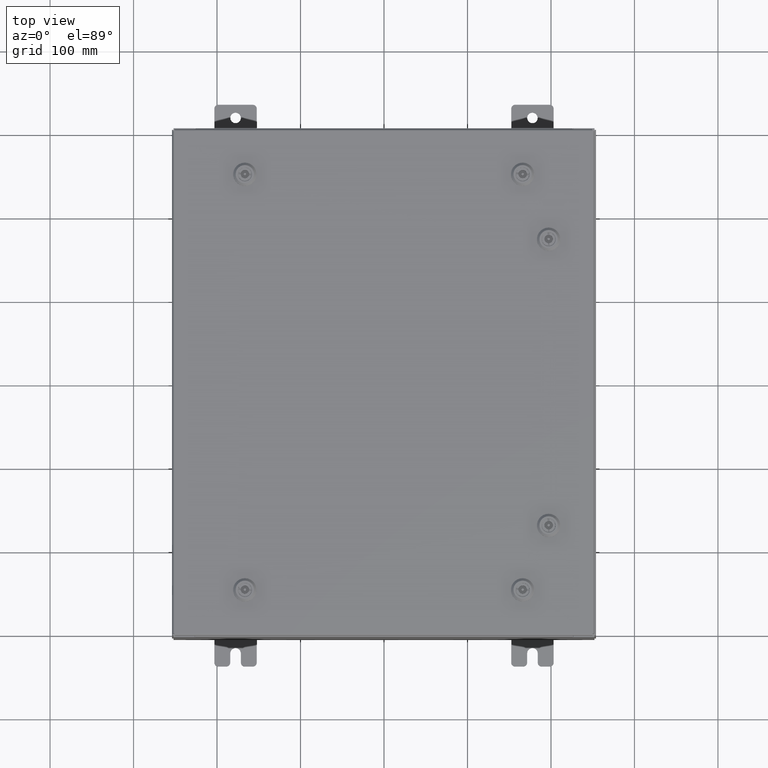
[diagram: clean part render]
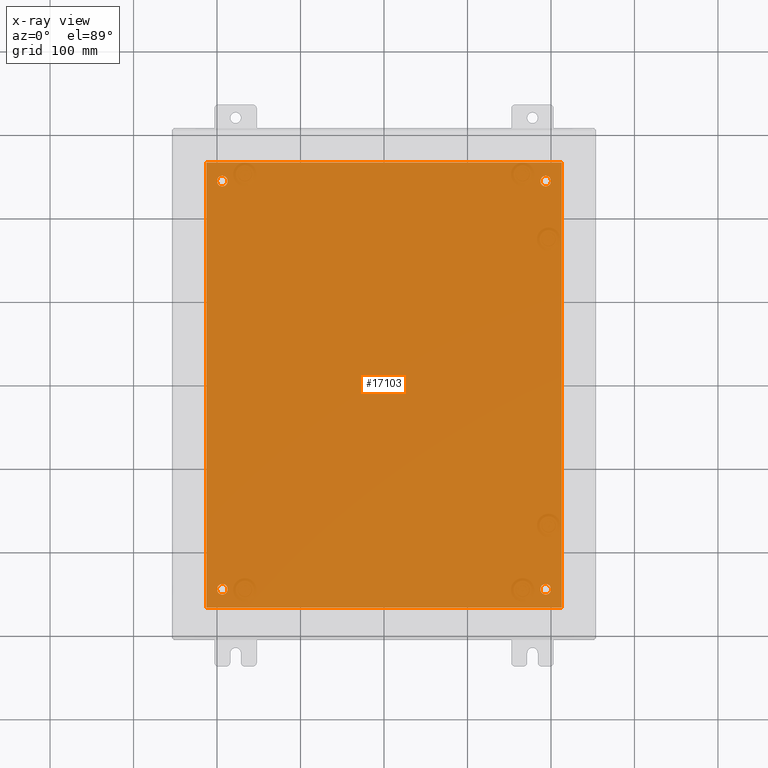
[diagram: x-ray — body ghosted, one internal face saturated and labeled with its STEP entity id]
A machine part, top view, then the same camera in x-ray: the body is ghosted and one INTERNAL B-rep face — a face not visible from any outside direction — is saturated and labeled: STEP entity #17103.
In plain terms, the highlighted planar face has unit normal (0, 0, -1).
Its self-contained STEP definition (entity closure, byte-faithful):
#74 = ORIENTED_EDGE ( 'NONE', *, *, #5745, .T. ) ;
#174 = CARTESIAN_POINT ( 'NONE',  ( 8.382999999999999100, -10.50000000000000200, -0.1039999999999998100 ) ) ;
#1517 = CARTESIAN_POINT ( 'NONE',  ( -8.500000000000001800, 10.50000000000000200, -0.1039999999999999800 ) ) ;
#1694 = EDGE_CURVE ( 'NONE', #27421, #2485, #14214, .T. ) ;
#2332 = EDGE_CURVE ( 'NONE', #38944, #36705, #59443, .T. ) ;
#2485 = VERTEX_POINT ( 'NONE', #46382 ) ;
#3103 = CIRCLE ( 'NONE', #4599, 0.2499999999999987000 ) ;
#4325 = VECTOR ( 'NONE', #23172, 39.37007874015748100 ) ;
#4449 = CARTESIAN_POINT ( 'NONE',  ( -7.625000000000004400, -9.625000000000001800, -0.1039999999999999800 ) ) ;
#4599 = AXIS2_PLACEMENT_3D ( 'NONE', #47724, #18327, #52656 ) ;
#5409 = EDGE_LOOP ( 'NONE', ( #44856, #25897 ) ) ;
#5745 = EDGE_CURVE ( 'NONE', #56932, #62209, #40051, .T. ) ;
#6470 = CARTESIAN_POINT ( 'NONE',  ( -7.875000000000003600, -9.625000000000001800, -0.1039999999999999800 ) ) ;
#7677 = DIRECTION ( 'NONE',  ( 0.0000000000000000000, 0.0000000000000000000, -1.000000000000000000 ) ) ;
#7693 = VERTEX_POINT ( 'NONE', #12562 ) ;
#8388 = EDGE_CURVE ( 'NONE', #2485, #38944, #52908, .T. ) ;
#8423 = ORIENTED_EDGE ( 'NONE', *, *, #2332, .F. ) ;
#8473 = CARTESIAN_POINT ( 'NONE',  ( -8.500000000000001800, -10.50000000000000000, -0.1039999999999999800 ) ) ;
#8996 = AXIS2_PLACEMENT_3D ( 'NONE', #4449, #38738, #9379 ) ;
#9379 = DIRECTION ( 'NONE',  ( -1.000000000000000000, 0.0000000000000000000, 0.0000000000000000000 ) ) ;
#9453 = AXIS2_PLACEMENT_3D ( 'NONE', #17543, #51853, #22429 ) ;
#9767 = CARTESIAN_POINT ( 'NONE',  ( -7.875000000000003600, 9.625000000000001800, -0.1039999999999999800 ) ) ;
#12424 = DIRECTION ( 'NONE',  ( -0.0000000000000000000, -0.0000000000000000000, 1.000000000000000000 ) ) ;
#12562 = CARTESIAN_POINT ( 'NONE',  ( 7.875000000000002700, -9.625000000000001800, -0.1039999999999999800 ) ) ;
#12608 = CARTESIAN_POINT ( 'NONE',  ( 7.625000000000004400, -9.625000000000001800, -0.1039999999999999800 ) ) ;
#13351 = CARTESIAN_POINT ( 'NONE',  ( -7.375000000000004400, 9.625000000000001800, -0.1039999999999999800 ) ) ;
#13358 = VERTEX_POINT ( 'NONE', #6470 ) ;
#14214 = LINE ( 'NONE', #174, #53339 ) ;
#15185 = FACE_BOUND ( 'NONE', #45993, .T. ) ;
#15720 = VERTEX_POINT ( 'NONE', #55478 ) ;
#16471 = CARTESIAN_POINT ( 'NONE',  ( 7.875000000000002700, 9.625000000000001800, -0.1039999999999999800 ) ) ;
#17103 = ADVANCED_FACE ( 'NONE', ( #25057, #36610, #15185, #39710, #62675 ), #17499, .T. ) ;
#17499 = PLANE ( 'NONE',  #62208 ) ;
#17519 = DIRECTION ( 'NONE',  ( -1.000000000000000000, 0.0000000000000000000, 0.0000000000000000000 ) ) ;
#17543 = CARTESIAN_POINT ( 'NONE',  ( 7.625000000000004400, -9.625000000000001800, -0.1039999999999999800 ) ) ;
#18327 = DIRECTION ( 'NONE',  ( -0.0000000000000000000, -0.0000000000000000000, 1.000000000000000000 ) ) ;
#18796 = DIRECTION ( 'NONE',  ( -0.0000000000000000000, -0.0000000000000000000, 1.000000000000000000 ) ) ;
#19313 = EDGE_CURVE ( 'NONE', #58260, #7693, #20562, .T. ) ;
#19669 = CARTESIAN_POINT ( 'NONE',  ( -8.383000000000002700, 10.50000000000000200, -0.1039999999999998100 ) ) ;
#20053 = CARTESIAN_POINT ( 'NONE',  ( 8.382999999999999100, -10.50000000000000000, -0.1039999999999999800 ) ) ;
#20562 = CIRCLE ( 'NONE', #9453, 0.2499999999999987000 ) ;
#21900 = EDGE_LOOP ( 'NONE', ( #23434, #8423, #30610, #56008 ) ) ;
#22387 = CARTESIAN_POINT ( 'NONE',  ( 0.0000000000000000000, 0.0000000000000000000, -0.1039999999999999800 ) ) ;
#22429 = DIRECTION ( 'NONE',  ( -1.000000000000000000, 0.0000000000000000000, 0.0000000000000000000 ) ) ;
#22944 = ORIENTED_EDGE ( 'NONE', *, *, #31469, .T. ) ;
#23172 = DIRECTION ( 'NONE',  ( 1.000000000000000000, 0.0000000000000000000, 0.0000000000000000000 ) ) ;
#23434 = ORIENTED_EDGE ( 'NONE', *, *, #50959, .F. ) ;
#25057 = FACE_BOUND ( 'NONE', #53790, .T. ) ;
#25897 = ORIENTED_EDGE ( 'NONE', *, *, #19313, .T. ) ;
#26782 = VECTOR ( 'NONE', #35780, 39.37007874015748100 ) ;
#26845 = CARTESIAN_POINT ( 'NONE',  ( 7.625000000000004400, 9.625000000000001800, -0.1039999999999999800 ) ) ;
#26880 = VERTEX_POINT ( 'NONE', #53689 ) ;
#27421 = VERTEX_POINT ( 'NONE', #20053 ) ;
#27694 = CARTESIAN_POINT ( 'NONE',  ( 7.375000000000005300, -9.625000000000001800, -0.1039999999999999800 ) ) ;
#27955 = DIRECTION ( 'NONE',  ( -0.0000000000000000000, -0.0000000000000000000, 1.000000000000000000 ) ) ;
#28628 = ORIENTED_EDGE ( 'NONE', *, *, #49269, .T. ) ;
#30399 = LINE ( 'NONE', #8473, #4325 ) ;
#30499 = CARTESIAN_POINT ( 'NONE',  ( -8.383000000000002700, 10.50000000000000400, -0.1039999999999998100 ) ) ;
#30610 = ORIENTED_EDGE ( 'NONE', *, *, #8388, .F. ) ;
#31405 = AXIS2_PLACEMENT_3D ( 'NONE', #41766, #12424, #46723 ) ;
#31469 = EDGE_CURVE ( 'NONE', #35272, #26880, #3103, .T. ) ;
#31792 = DIRECTION ( 'NONE',  ( -1.000000000000000000, 0.0000000000000000000, 0.0000000000000000000 ) ) ;
#31809 = EDGE_CURVE ( 'NONE', #26880, #35272, #32948, .T. ) ;
#32948 = CIRCLE ( 'NONE', #57171, 0.2499999999999987000 ) ;
#33938 = AXIS2_PLACEMENT_3D ( 'NONE', #57380, #27955, #62301 ) ;
#33962 = EDGE_LOOP ( 'NONE', ( #74, #42639 ) ) ;
#34303 = CIRCLE ( 'NONE', #51003, 0.2499999999999998100 ) ;
#35272 = VERTEX_POINT ( 'NONE', #16471 ) ;
#35780 = DIRECTION ( 'NONE',  ( -1.000000000000000000, -0.0000000000000000000, -0.0000000000000000000 ) ) ;
#35861 = CIRCLE ( 'NONE', #31405, 0.2499999999999998100 ) ;
#36610 = FACE_BOUND ( 'NONE', #5409, .T. ) ;
#36705 = VERTEX_POINT ( 'NONE', #52608 ) ;
#38738 = DIRECTION ( 'NONE',  ( -0.0000000000000000000, -0.0000000000000000000, 1.000000000000000000 ) ) ;
#38944 = VERTEX_POINT ( 'NONE', #19669 ) ;
#39710 = FACE_BOUND ( 'NONE', #33962, .T. ) ;
#40051 = CIRCLE ( 'NONE', #33938, 0.2499999999999998100 ) ;
#41766 = CARTESIAN_POINT ( 'NONE',  ( -7.625000000000004400, -9.625000000000001800, -0.1039999999999999800 ) ) ;
#42639 = ORIENTED_EDGE ( 'NONE', *, *, #61447, .T. ) ;
#43401 = ORIENTED_EDGE ( 'NONE', *, *, #59124, .T. ) ;
#44856 = ORIENTED_EDGE ( 'NONE', *, *, #45211, .T. ) ;
#45211 = EDGE_CURVE ( 'NONE', #7693, #58260, #52913, .T. ) ;
#45993 = EDGE_LOOP ( 'NONE', ( #22944, #57169 ) ) ;
#46382 = CARTESIAN_POINT ( 'NONE',  ( 8.382999999999999100, 10.50000000000000200, -0.1039999999999999800 ) ) ;
#46723 = DIRECTION ( 'NONE',  ( -1.000000000000000000, 0.0000000000000000000, 0.0000000000000000000 ) ) ;
#46791 = DIRECTION ( 'NONE',  ( 0.0000000000000000000, 1.000000000000000000, 0.0000000000000000000 ) ) ;
#46914 = DIRECTION ( 'NONE',  ( -0.0000000000000000000, -0.0000000000000000000, 1.000000000000000000 ) ) ;
#47724 = CARTESIAN_POINT ( 'NONE',  ( 7.625000000000004400, 9.625000000000001800, -0.1039999999999999800 ) ) ;
#47883 = VECTOR ( 'NONE', #47888, 39.37007874015748100 ) ;
#47888 = DIRECTION ( 'NONE',  ( 0.0000000000000000000, -1.000000000000000000, 0.0000000000000000000 ) ) ;
#48188 = CARTESIAN_POINT ( 'NONE',  ( -7.625000000000004400, 9.625000000000001800, -0.1039999999999999800 ) ) ;
#49269 = EDGE_CURVE ( 'NONE', #13358, #15720, #35861, .T. ) ;
#50959 = EDGE_CURVE ( 'NONE', #36705, #27421, #30399, .T. ) ;
#51003 = AXIS2_PLACEMENT_3D ( 'NONE', #48188, #18796, #53169 ) ;
#51853 = DIRECTION ( 'NONE',  ( -0.0000000000000000000, -0.0000000000000000000, 1.000000000000000000 ) ) ;
#52608 = CARTESIAN_POINT ( 'NONE',  ( -8.383000000000002700, -10.50000000000000000, -0.1039999999999998100 ) ) ;
#52656 = DIRECTION ( 'NONE',  ( -1.000000000000000000, 0.0000000000000000000, 0.0000000000000000000 ) ) ;
#52908 = LINE ( 'NONE', #1517, #26782 ) ;
#52913 = CIRCLE ( 'NONE', #56973, 0.2499999999999987000 ) ;
#53169 = DIRECTION ( 'NONE',  ( -1.000000000000000000, 0.0000000000000000000, 0.0000000000000000000 ) ) ;
#53339 = VECTOR ( 'NONE', #46791, 39.37007874015748100 ) ;
#53689 = CARTESIAN_POINT ( 'NONE',  ( 7.375000000000005300, 9.625000000000001800, -0.1039999999999999800 ) ) ;
#53790 = EDGE_LOOP ( 'NONE', ( #43401, #28628 ) ) ;
#55478 = CARTESIAN_POINT ( 'NONE',  ( -7.375000000000004400, -9.625000000000001800, -0.1039999999999999800 ) ) ;
#56008 = ORIENTED_EDGE ( 'NONE', *, *, #1694, .F. ) ;
#56728 = CIRCLE ( 'NONE', #8996, 0.2499999999999998100 ) ;
#56932 = VERTEX_POINT ( 'NONE', #13351 ) ;
#56973 = AXIS2_PLACEMENT_3D ( 'NONE', #12608, #46914, #17519 ) ;
#57169 = ORIENTED_EDGE ( 'NONE', *, *, #31809, .T. ) ;
#57171 = AXIS2_PLACEMENT_3D ( 'NONE', #26845, #61190, #31792 ) ;
#57380 = CARTESIAN_POINT ( 'NONE',  ( -7.625000000000004400, 9.625000000000001800, -0.1039999999999999800 ) ) ;
#58260 = VERTEX_POINT ( 'NONE', #27694 ) ;
#59124 = EDGE_CURVE ( 'NONE', #15720, #13358, #56728, .T. ) ;
#59443 = LINE ( 'NONE', #30499, #47883 ) ;
#61190 = DIRECTION ( 'NONE',  ( -0.0000000000000000000, -0.0000000000000000000, 1.000000000000000000 ) ) ;
#61447 = EDGE_CURVE ( 'NONE', #62209, #56932, #34303, .T. ) ;
#61677 = DIRECTION ( 'NONE',  ( -1.000000000000000000, 0.0000000000000000000, -0.0000000000000000000 ) ) ;
#62208 = AXIS2_PLACEMENT_3D ( 'NONE', #22387, #7677, #61677 ) ;
#62209 = VERTEX_POINT ( 'NONE', #9767 ) ;
#62301 = DIRECTION ( 'NONE',  ( -1.000000000000000000, 0.0000000000000000000, 0.0000000000000000000 ) ) ;
#62675 = FACE_OUTER_BOUND ( 'NONE', #21900, .T. ) ;